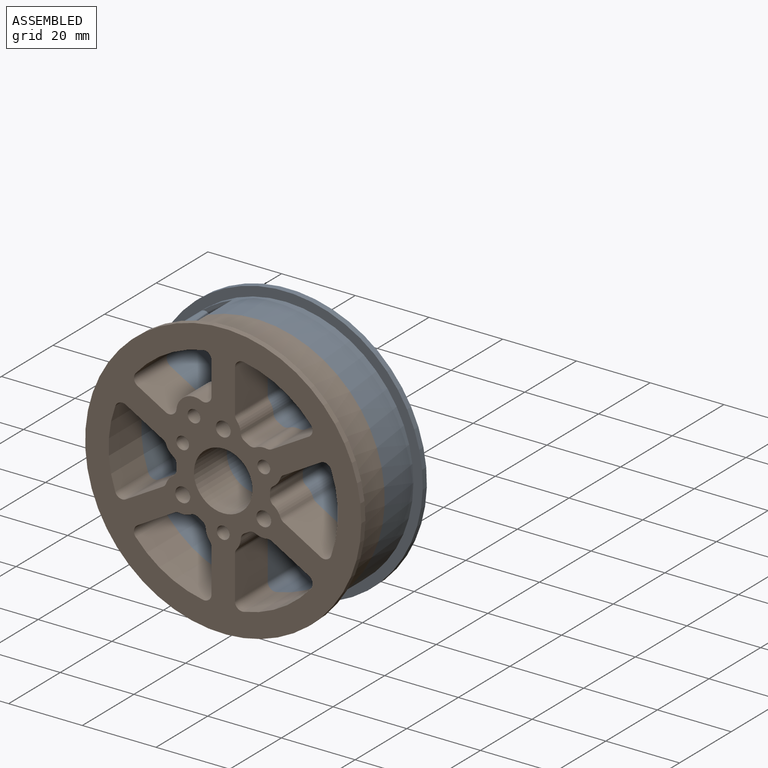
[diagram: assembled view]
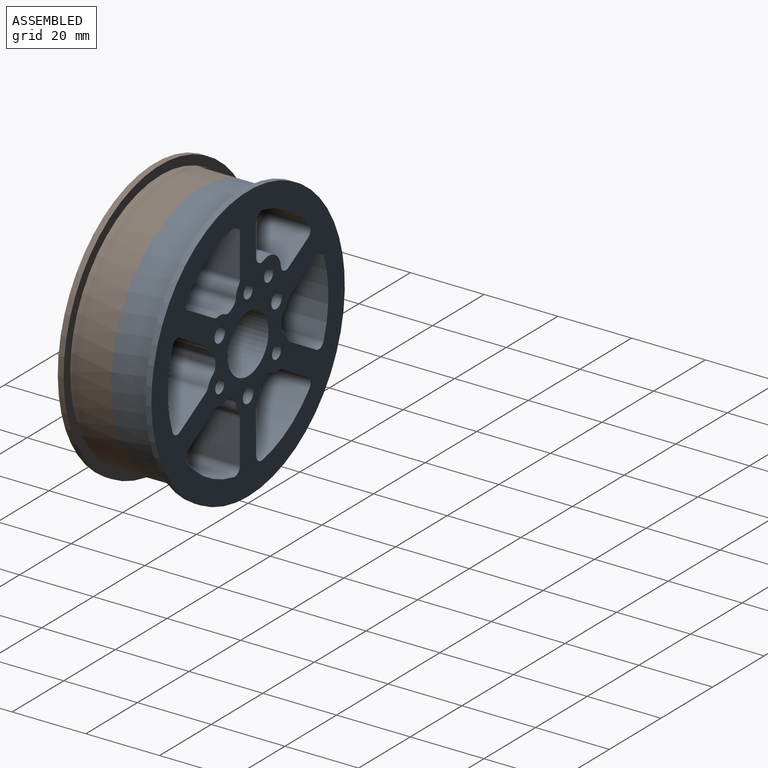
[diagram: assembled view, second angle]
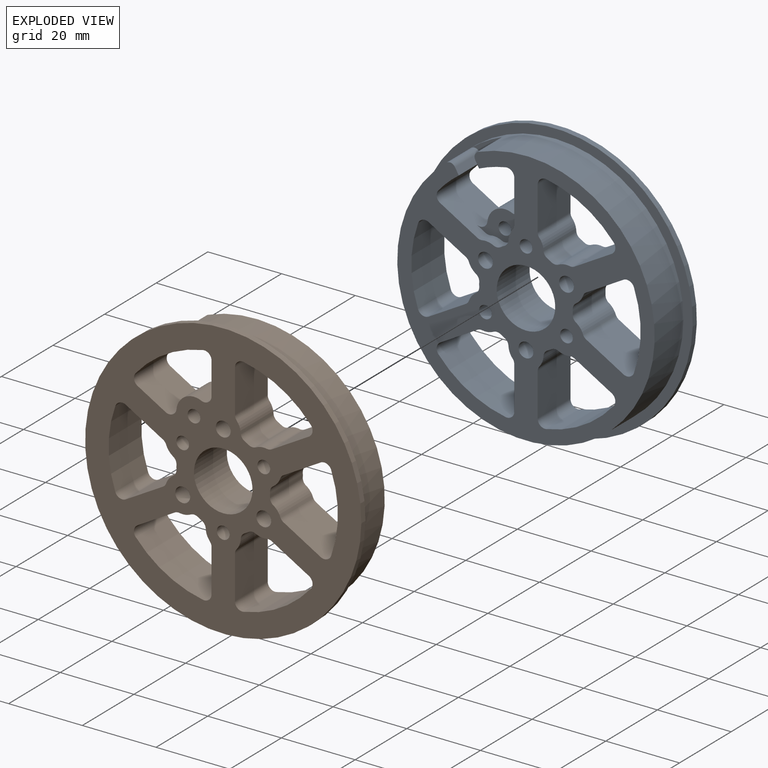
[diagram: exploded view]
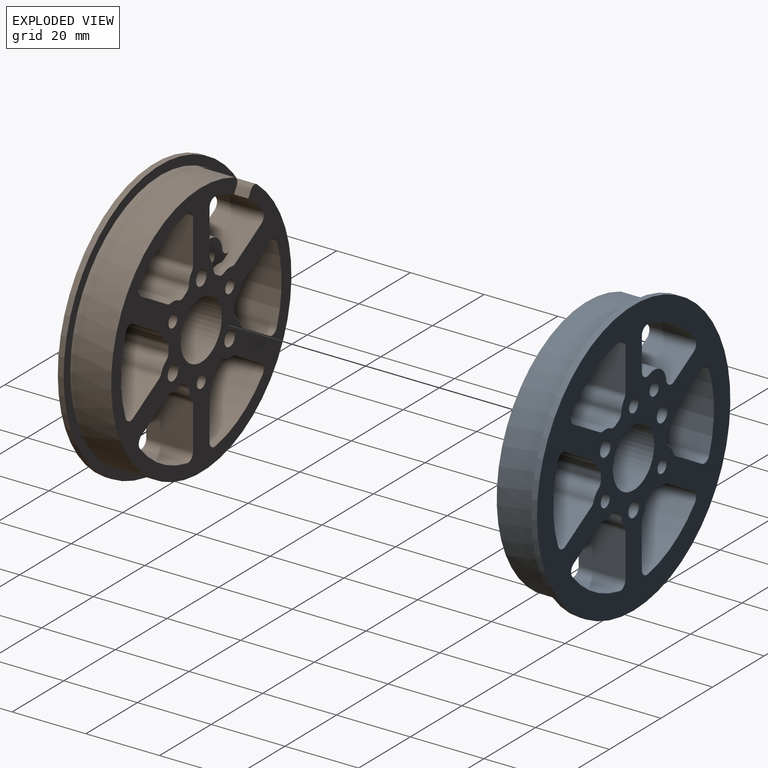
[diagram: exploded view, second angle]
ASSEMBLY  parts=2 mates=2
PART A: 94 faces, bbox 74.9x12.7x74.9 mm
  f0: cylinder r=31.12mm len=18.25mm, axis (0,1,0), area 212.5mm2, adj f61,f62,f78,f79,f86,f87,f88
  f1: cylinder r=1.98mm len=12.7mm, axis (0,1,0), area 17.6mm2, adj f10,f12,f61,f62
  f2: cylinder r=1.98mm len=12.7mm, axis (0,1,0), area 44.1mm2, adj f11,f12,f61,f62
  f3: cylinder r=1.98mm len=12.7mm, axis (0,1,0), area 44.1mm2, adj f7,f11,f61,f62
  f4: cylinder r=1.98mm len=12.7mm, axis (0,-1,0), area 26.3mm2, adj f9,f10,f61,f62
  f5: cylinder r=1.98mm len=12.7mm, axis (0,-1,0), area 26.3mm2, adj f8,f9,f61,f62
  f6: cylinder r=1.98mm len=12.7mm, axis (0,1,0), area 17.6mm2, adj f7,f8,f61,f62
  f7: plane 12.7x11.62mm, normal (1,0,0), area 147.6mm2, adj f3,f6,f61,f62
  f8: cylinder r=4.76mm len=12.7mm, axis (0,1,0), area 39.2mm2, adj f5,f6,f61,f62
  f9: cylinder r=12.7mm len=12.7mm, axis (0,1,0), area 15.1mm2, adj f4,f5,f61,f62
  f10: cylinder r=4.76mm len=12.7mm, axis (0,1,0), area 39.2mm2, adj f1,f4,f61,f62
  f11: cylinder r=31.12mm len=18.25mm, axis (0,1,0), area 273.1mm2, adj f2,f3,f61,f62
  f12: plane 12.7x10.07mm, normal (-0.5,0,0.87), area 147.6mm2, adj f1,f2,f61,f62
  f13: cylinder r=1.98mm len=12.7mm, axis (0,1,0), area 17.6mm2, adj f22,f24,f61,f62
  f14: cylinder r=1.98mm len=12.7mm, axis (0,1,0), area 44.1mm2, adj f23,f24,f61,f62
  f15: cylinder r=1.98mm len=12.7mm, axis (0,1,0), area 44.1mm2, adj f19,f23,f61,f62
  f16: cylinder r=1.98mm len=12.7mm, axis (0,-1,0), area 26.3mm2, adj f21,f22,f61,f62
  f17: cylinder r=1.98mm len=12.7mm, axis (0,-1,0), area 26.3mm2, adj f20,f21,f61,f62
  f18: cylinder r=1.98mm len=12.7mm, axis (0,1,0), area 17.6mm2, adj f19,f20,f61,f62
  f19: plane 12.7x10.07mm, normal (0.5,0,-0.87), area 147.6mm2, adj f15,f18,f61,f62
  f20: cylinder r=4.76mm len=12.7mm, axis (0,1,0), area 39.2mm2, adj f17,f18,f61,f62
  f21: cylinder r=12.7mm len=12.7mm, axis (0,1,0), area 15.1mm2, adj f16,f17,f61,f62
  f22: cylinder r=4.76mm len=12.7mm, axis (0,1,0), area 39.2mm2, adj f13,f16,f61,f62
  f23: cylinder r=31.12mm len=21.08mm, axis (0,1,0), area 273.1mm2, adj f14,f15,f61,f62
  f24: plane 12.7x10.07mm, normal (0.5,0,0.87), area 147.6mm2, adj f13,f14,f61,f62
  f25: cylinder r=1.98mm len=12.7mm, axis (0,1,0), area 17.6mm2, adj f34,f36,f61,f62
  f26: cylinder r=1.98mm len=12.7mm, axis (0,1,0), area 44.1mm2, adj f35,f36,f61,f62
  f27: cylinder r=1.98mm len=12.7mm, axis (0,1,0), area 44.1mm2, adj f31,f35,f61,f62
  f28: cylinder r=1.98mm len=12.7mm, axis (0,-1,0), area 26.3mm2, adj f33,f34,f61,f62
  f29: cylinder r=1.98mm len=12.7mm, axis (0,-1,0), area 26.3mm2, adj f32,f33,f61,f62
  f30: cylinder r=1.98mm len=12.7mm, axis (0,1,0), area 17.6mm2, adj f31,f32,f61,f62
  f31: plane 12.7x10.07mm, normal (-0.5,0,-0.87), area 147.6mm2, adj f27,f30,f61,f62
  f32: cylinder r=4.76mm len=12.7mm, axis (0,1,0), area 39.2mm2, adj f29,f30,f61,f62
  f33: cylinder r=12.7mm len=12.7mm, axis (0,1,0), area 15.1mm2, adj f28,f29,f61,f62
  f34: cylinder r=4.76mm len=12.7mm, axis (0,1,0), area 39.2mm2, adj f25,f28,f61,f62
  f35: cylinder r=31.12mm len=18.25mm, axis (0,1,0), area 273.1mm2, adj f26,f27,f61,f62
  f36: plane 12.7x11.62mm, normal (1,0,0), area 147.6mm2, adj f25,f26,f61,f62
  f37: cylinder r=1.98mm len=12.7mm, axis (0,1,0), area 17.6mm2, adj f46,f48,f61,f62
  f38: cylinder r=1.98mm len=12.7mm, axis (0,1,0), area 44.1mm2, adj f47,f48,f61,f62
  f39: cylinder r=1.98mm len=12.7mm, axis (0,1,0), area 44.1mm2, adj f43,f47,f61,f62
  f40: cylinder r=1.98mm len=12.7mm, axis (0,-1,0), area 26.3mm2, adj f45,f46,f61,f62
  f41: cylinder r=1.98mm len=12.7mm, axis (0,-1,0), area 26.3mm2, adj f44,f45,f61,f62
  f42: cylinder r=1.98mm len=12.7mm, axis (0,1,0), area 17.6mm2, adj f43,f44,f61,f62
  f43: plane 12.7x11.62mm, normal (-1,0,0), area 147.6mm2, adj f39,f42,f61,f62
  f44: cylinder r=4.76mm len=12.7mm, axis (0,1,0), area 39.2mm2, adj f41,f42,f61,f62
  f45: cylinder r=12.7mm len=12.7mm, axis (0,1,0), area 15.1mm2, adj f40,f41,f61,f62
  f46: cylinder r=4.76mm len=12.7mm, axis (0,1,0), area 39.2mm2, adj f37,f40,f61,f62
  f47: cylinder r=31.12mm len=18.25mm, axis (0,1,0), area 273.1mm2, adj f38,f39,f61,f62
  f48: plane 12.7x10.07mm, normal (0.5,0,-0.87), area 147.6mm2, adj f37,f38,f61,f62
  f49: cylinder r=1.98mm len=12.7mm, axis (0,1,0), area 17.6mm2, adj f58,f60,f61,f62
  f50: cylinder r=1.98mm len=12.7mm, axis (0,1,0), area 44.1mm2, adj f59,f60,f61,f62
  f51: cylinder r=1.98mm len=12.7mm, axis (0,1,0), area 44.1mm2, adj f55,f59,f61,f62
  f52: cylinder r=1.98mm len=12.7mm, axis (0,-1,0), area 26.3mm2, adj f57,f58,f61,f62
  f53: cylinder r=1.98mm len=12.7mm, axis (0,-1,0), area 26.3mm2, adj f56,f57,f61,f62
  f54: cylinder r=1.98mm len=12.7mm, axis (0,1,0), area 17.6mm2, adj f55,f56,f61,f62
  f55: plane 12.7x10.07mm, normal (-0.5,0,0.87), area 147.6mm2, adj f51,f54,f61,f62
  f56: cylinder r=4.76mm len=12.7mm, axis (0,1,0), area 39.2mm2, adj f53,f54,f61,f62
  f57: cylinder r=12.7mm len=12.7mm, axis (0,1,0), area 15.1mm2, adj f52,f53,f61,f62
  f58: cylinder r=4.76mm len=12.7mm, axis (0,1,0), area 39.2mm2, adj f49,f52,f61,f62
  f59: cylinder r=31.12mm len=21.08mm, axis (0,1,0), area 273.1mm2, adj f50,f51,f61,f62
  f60: plane 12.7x10.07mm, normal (-0.5,0,-0.87), area 147.6mm2, adj f49,f50,f61,f62
  f61: plane 74.93x74.93mm, normal (0,1,0), area 2444.8mm2, adj f0,f1,f2,f3,f4,f5,f6,f7
  f62: plane 69.85x69.85mm, normal (0,-1,0), area 1789.1mm2, adj f0,f1,f2,f3,f4,f5,f6,f7
  f63: cylinder r=37.46mm len=74.93mm, axis (0,1,0), area 373.7mm2, adj f61,f64
  f64: plane 74.93x74.93mm, normal (0,-1,0), area 577.6mm2, adj f63,f69
  f65: cylinder r=1.73mm len=12.7mm, axis (0,1,0), area 137.8mm2, adj f61,f62
  f66: cylinder r=1.73mm len=12.7mm, axis (0,1,0), area 137.8mm2, adj f61,f62
  f67: cylinder r=1.73mm len=12.7mm, axis (0,1,0), area 137.8mm2, adj f61,f62
  f68: cylinder r=7.94mm len=15.88mm, axis (0,1,0), area 633.4mm2, adj f61,f62
  f69: cylinder r=34.92mm len=69.85mm, axis (0,1,0), area 2343.2mm2, adj f62,f64,f88,f89,f90
  f70: plane 12.7x10.07mm, normal (0.5,0,0.87), area 120.5mm2, adj f61,f62,f75,f78,f81,f84
  f71: cylinder r=4.76mm len=3.18mm, axis (0,1,0), area 9.8mm2, adj f62,f75,f76,f81
  f72: cylinder r=12.7mm len=3.18mm, axis (0,1,0), area 3.8mm2, adj f62,f76,f77,f81
  f73: cylinder r=4.76mm len=3.18mm, axis (0,1,0), area 9.8mm2, adj f62,f77,f80,f81
  f74: plane 12.7x11.62mm, normal (-1,0,0), area 120.5mm2, adj f61,f62,f79,f80,f81,f82
  f75: cylinder r=1.98mm len=3.18mm, axis (0,1,0), area 4.4mm2, adj f62,f70,f71,f81
  f76: cylinder r=1.98mm len=3.18mm, axis (0,-1,0), area 6.6mm2, adj f62,f71,f72,f81
  f77: cylinder r=1.98mm len=3.18mm, axis (0,-1,0), area 6.6mm2, adj f62,f72,f73,f81
  f78: cylinder r=1.98mm len=12.7mm, axis (0,1,0), area 44.1mm2, adj f0,f61,f62,f70
  f79: cylinder r=1.98mm len=12.7mm, axis (0,1,0), area 44.1mm2, adj f0,f61,f62,f74
  f80: cylinder r=1.98mm len=3.18mm, axis (0,1,0), area 4.4mm2, adj f62,f73,f74,f81
  f81: plane 12.47x9.52mm, normal (0,-1,0), area 52.4mm2, adj f70,f71,f72,f73,f74,f75,f76,f77
  f82: cylinder r=1.98mm len=9.53mm, axis (0,1,0), area 37.7mm2, adj f61,f74,f81,f83
  f83: cylinder r=4.76mm len=9.53mm, axis (0,1,0), area 86mm2, adj f61,f81,f82,f84
  f84: cylinder r=1.98mm len=9.53mm, axis (0,1,0), area 37.7mm2, adj f61,f70,f81,f83
  f85: cylinder r=1.73mm len=9.53mm, axis (0,1,0), area 103.4mm2, adj f61,f81
  f86: plane 9.53x1.77mm, normal (-0.87,0,-0.5), area 19.5mm2, adj f0,f62,f88,f89
  f87: plane 9.53x1.77mm, normal (0.87,0,0.5), area 19.5mm2, adj f0,f62,f88,f90
  f88: plane 8.88x7.21mm, normal (0,-1,0), area 25.7mm2, adj f0,f69,f86,f87,f89,f90
  f89: cylinder r=1.59mm len=9.53mm, axis (0,1,0), area 25.9mm2, adj f62,f69,f86,f88
  f90: cylinder r=1.59mm len=9.53mm, axis (0,1,0), area 25.9mm2, adj f62,f69,f87,f88
  f91: cylinder r=2.02mm len=12.7mm, axis (0,-1,0), area 161.1mm2, adj f61,f62
  f92: cylinder r=2.02mm len=12.7mm, axis (0,-1,0), area 161.1mm2, adj f61,f62
  f93: cylinder r=2.02mm len=12.7mm, axis (0,-1,0), area 161.1mm2, adj f61,f62
PART B: same geometry as A
PLACE A at identity fixed
PLACE B rot(axis=(0.5,0,-0.87),180deg) t=(0,-25.4,0)mm
MATE revolute B.f68 <-> A.f68  axis (0,1,0) through (0,-12.7,0)mm
MATE fastened B.f86 <-> A.f87  axis (0.87,0,0.5) through (-18.74,-12.7,26.1)mm
